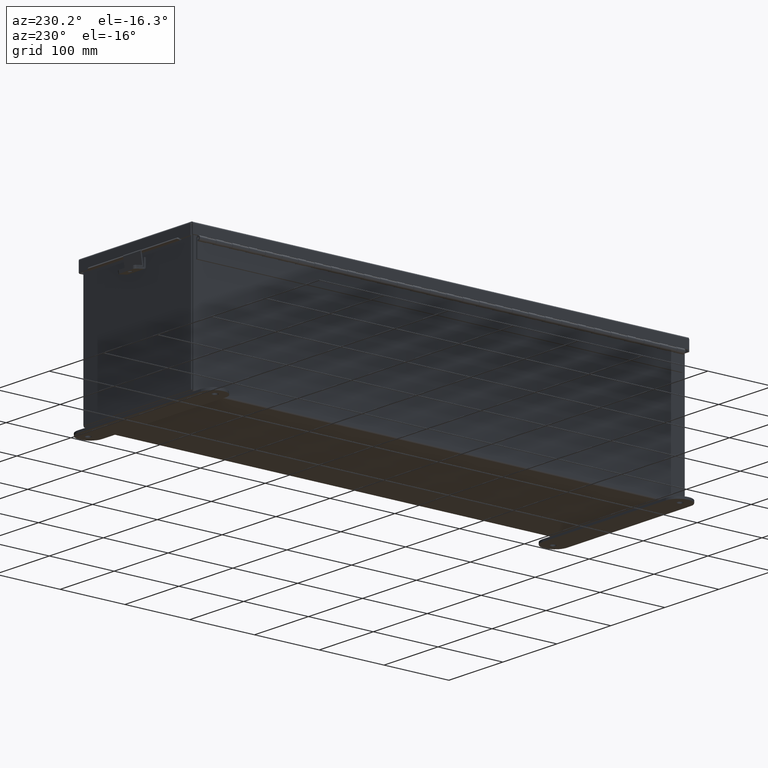
[diagram: clean part render]
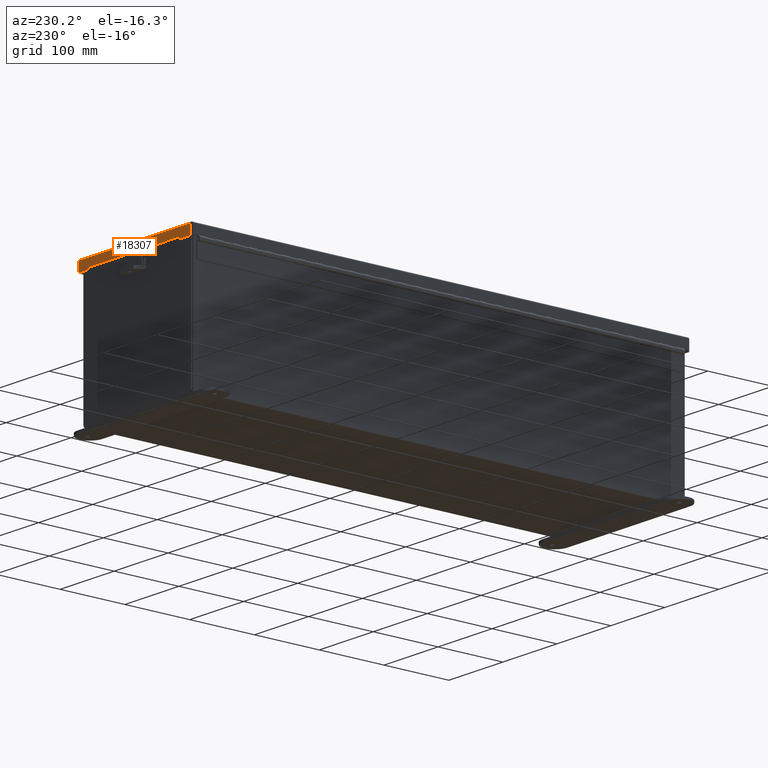
[diagram: same view with one face highlighted and labeled with its STEP entity id]
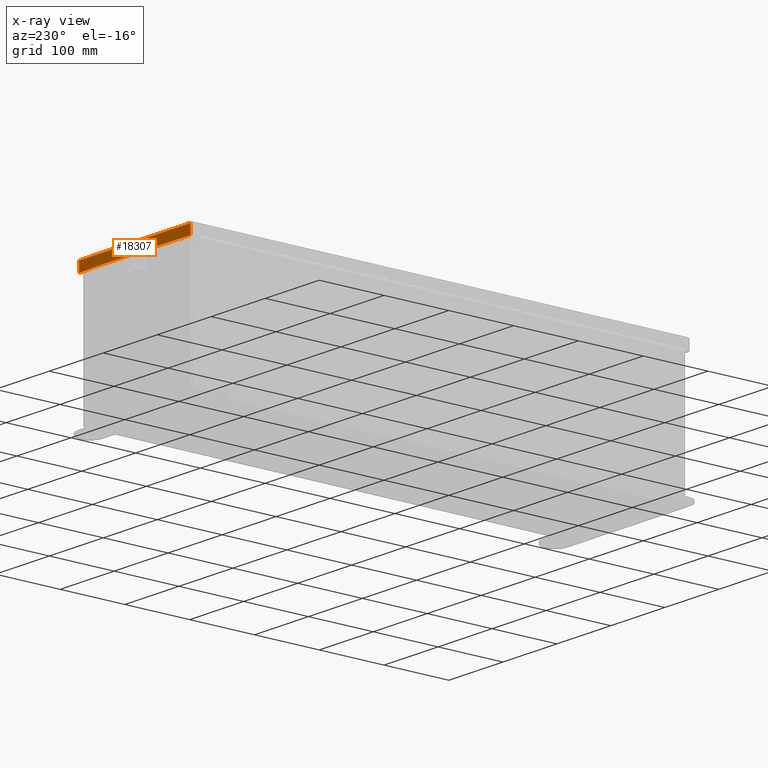
[diagram: x-ray of the same camera — body ghosted, the highlighted face saturated]
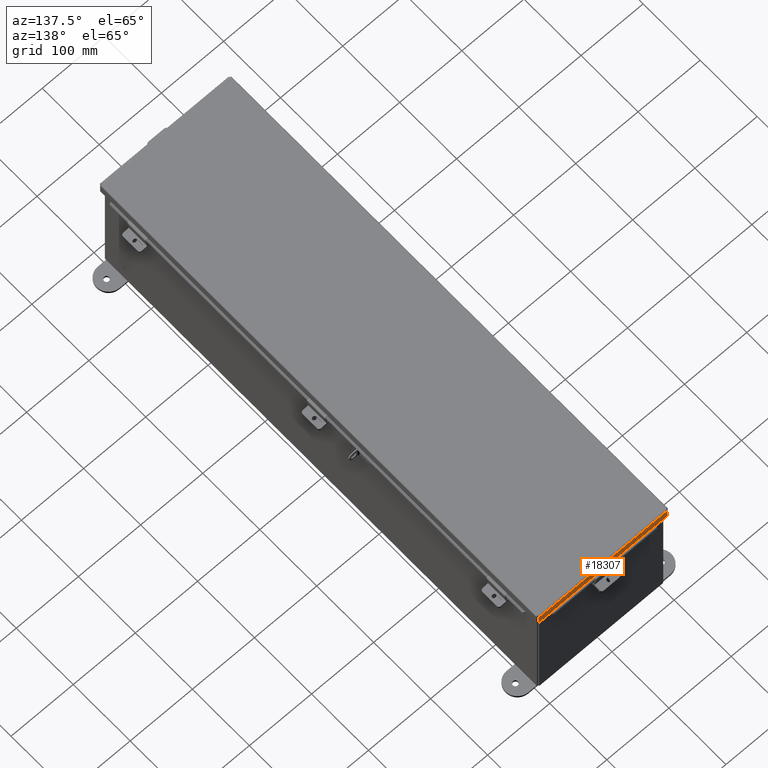
[diagram: same view with one face highlighted and labeled with its STEP entity id]
A machine part, auxiliary view. The second image highlights one B-rep face of the part: STEP entity #18307.
The next image is the same camera in x-ray: the body ghosted, the highlighted face saturated — about 0% of this face is hidden behind the body in this view.
A second angle (auxiliary view) of the same face is appended — the face is thin or edge-on in the first view.
In plain terms, the highlighted planar face has unit normal (-0, -1, -0).
Its self-contained STEP definition (entity closure, byte-faithful):
#376 = LINE ( 'NONE', #6603, #5141 ) ;
#497 = CARTESIAN_POINT ( 'NONE',  ( 4.074478932188149800, 15.15624999999999500, 0.0000000000000000000 ) ) ;
#650 = VECTOR ( 'NONE', #1325, 39.37007874015748100 ) ;
#1325 = DIRECTION ( 'NONE',  ( 1.000000000000000000, 1.011069004336951200E-029, 7.888609052210086500E-031 ) ) ;
#1687 = ORIENTED_EDGE ( 'NONE', *, *, #19954, .F. ) ;
#2065 = FACE_OUTER_BOUND ( 'NONE', #22961, .T. ) ;
#2217 = VERTEX_POINT ( 'NONE', #6275 ) ;
#2697 = VECTOR ( 'NONE', #20367, 39.37007874015748100 ) ;
#2817 = EDGE_CURVE ( 'NONE', #23525, #8341, #15249, .T. ) ;
#3378 = CARTESIAN_POINT ( 'NONE',  ( -4.074478932188160500, 15.15624999999999500, -5.463695987328526600E-014 ) ) ;
#3385 = EDGE_CURVE ( 'NONE', #8341, #12425, #8862, .T. ) ;
#3431 = CARTESIAN_POINT ( 'NONE',  ( -5.335640612625514100E-018, 15.15624999999999600, 0.6123000000000091700 ) ) ;
#4487 = ORIENTED_EDGE ( 'NONE', *, *, #10281, .T. ) ;
#4665 = DIRECTION ( 'NONE',  ( -7.888609052210086500E-031, 1.401985044024236100E-013, 1.000000000000000000 ) ) ;
#5041 = LINE ( 'NONE', #25572, #650 ) ;
#5141 = VECTOR ( 'NONE', #4665, 39.37007874015748100 ) ;
#6001 = DIRECTION ( 'NONE',  ( -1.000000000000000000, -1.013996417852419800E-029, -7.888609052210086500E-031 ) ) ;
#6113 = VERTEX_POINT ( 'NONE', #25605 ) ;
#6275 = CARTESIAN_POINT ( 'NONE',  ( 4.074478932188148900, 15.15624999999999500, 0.01300000000000010700 ) ) ;
#6603 = CARTESIAN_POINT ( 'NONE',  ( -3.324478932188150700, 15.15624999999999500, 0.5967115427318815400 ) ) ;
#6720 = VECTOR ( 'NONE', #13559, 39.37007874015748100 ) ;
#7206 = ORIENTED_EDGE ( 'NONE', *, *, #23354, .T. ) ;
#7214 = DIRECTION ( 'NONE',  ( -1.016617170178813500E-029, -1.000000000000000000, 3.569293475308572600E-015 ) ) ;
#7474 = VERTEX_POINT ( 'NONE', #13672 ) ;
#7907 = EDGE_CURVE ( 'NONE', #7474, #10076, #17772, .T. ) ;
#8341 = VERTEX_POINT ( 'NONE', #8766 ) ;
#8766 = CARTESIAN_POINT ( 'NONE',  ( 3.324478932188137400, 15.15624999999999600, 0.5967115427318815400 ) ) ;
#8862 = LINE ( 'NONE', #10043, #13563 ) ;
#9027 = CARTESIAN_POINT ( 'NONE',  ( -4.074478932188160500, 15.15624999999999600, 0.6123000000000005100 ) ) ;
#10043 = CARTESIAN_POINT ( 'NONE',  ( 3.324478932188139600, 15.15624999999999500, 0.5967115427318815400 ) ) ;
#10076 = VERTEX_POINT ( 'NONE', #9027 ) ;
#10281 = EDGE_CURVE ( 'NONE', #10076, #25522, #22854, .T. ) ;
#11596 = VECTOR ( 'NONE', #12581, 39.37007874015748100 ) ;
#11754 = VECTOR ( 'NONE', #15459, 39.37007874015748100 ) ;
#12237 = LINE ( 'NONE', #497, #11596 ) ;
#12386 = ORIENTED_EDGE ( 'NONE', *, *, #3385, .F. ) ;
#12425 = VERTEX_POINT ( 'NONE', #17506 ) ;
#12581 = DIRECTION ( 'NONE',  ( -7.888609052210086500E-031, 3.569293475308572600E-015, 1.000000000000000000 ) ) ;
#13193 = CARTESIAN_POINT ( 'NONE',  ( 0.0000000000000000000, 15.15624999999999500, -5.354422067581955700E-014 ) ) ;
#13406 = LINE ( 'NONE', #24438, #2697 ) ;
#13416 = EDGE_CURVE ( 'NONE', #2217, #6113, #12237, .T. ) ;
#13559 = DIRECTION ( 'NONE',  ( 1.000000000000000000, 1.013928342036783500E-029, 8.216084191472245600E-018 ) ) ;
#13563 = VECTOR ( 'NONE', #6001, 39.37007874015748100 ) ;
#13672 = CARTESIAN_POINT ( 'NONE',  ( -4.074478932188161400, 15.15624999999999500, 0.01300000000000010700 ) ) ;
#14692 = ORIENTED_EDGE ( 'NONE', *, *, #13416, .F. ) ;
#15249 = LINE ( 'NONE', #22201, #20012 ) ;
#15459 = DIRECTION ( 'NONE',  ( -7.888609052210086500E-031, 3.569293475308572600E-015, 1.000000000000000000 ) ) ;
#16053 = ORIENTED_EDGE ( 'NONE', *, *, #23133, .F. ) ;
#16984 = CARTESIAN_POINT ( 'NONE',  ( 3.324478932188139600, 15.15624999999999600, 0.6122999999999994000 ) ) ;
#17103 = AXIS2_PLACEMENT_3D ( 'NONE', #13193, #7214, #21346 ) ;
#17506 = CARTESIAN_POINT ( 'NONE',  ( -3.324478932188150700, 15.15624999999999600, 0.5967115427318815400 ) ) ;
#17772 = LINE ( 'NONE', #3378, #11754 ) ;
#18307 = ADVANCED_FACE ( 'NONE', ( #2065 ), #19296, .F. ) ;
#19296 = PLANE ( 'NONE',  #17103 ) ;
#19807 = CARTESIAN_POINT ( 'NONE',  ( -3.324478932188151200, 15.15624999999999600, 0.6123000000000005100 ) ) ;
#19954 = EDGE_CURVE ( 'NONE', #12425, #25522, #376, .T. ) ;
#20012 = VECTOR ( 'NONE', #24270, 39.37007874015748100 ) ;
#20367 = DIRECTION ( 'NONE',  ( 1.000000000000000000, 1.013928342036783500E-029, 8.216084191472245600E-018 ) ) ;
#21332 = ORIENTED_EDGE ( 'NONE', *, *, #7907, .T. ) ;
#21346 = DIRECTION ( 'NONE',  ( 7.888609052210086500E-031, -3.569293475308572600E-015, -1.000000000000000000 ) ) ;
#21741 = ORIENTED_EDGE ( 'NONE', *, *, #2817, .F. ) ;
#22201 = CARTESIAN_POINT ( 'NONE',  ( 3.324478932188139600, 15.15624999999999600, 0.6123000000000005100 ) ) ;
#22854 = LINE ( 'NONE', #3431, #6720 ) ;
#22961 = EDGE_LOOP ( 'NONE', ( #21741, #7206, #14692, #16053, #21332, #4487, #1687, #12386 ) ) ;
#23133 = EDGE_CURVE ( 'NONE', #7474, #2217, #5041, .T. ) ;
#23354 = EDGE_CURVE ( 'NONE', #23525, #6113, #13406, .T. ) ;
#23525 = VERTEX_POINT ( 'NONE', #16984 ) ;
#24270 = DIRECTION ( 'NONE',  ( -1.401985044024259100E-013, -1.401985044024254500E-013, -1.000000000000000000 ) ) ;
#24438 = CARTESIAN_POINT ( 'NONE',  ( -5.335640612625514100E-018, 15.15624999999999600, 0.6123000000000091700 ) ) ;
#25522 = VERTEX_POINT ( 'NONE', #19807 ) ;
#25572 = CARTESIAN_POINT ( 'NONE',  ( 4.156250000000014200, 15.15624999999999500, 0.01300000000000010700 ) ) ;
#25605 = CARTESIAN_POINT ( 'NONE',  ( 4.074478932188149800, 15.15624999999999600, 0.6122999999999994000 ) ) ;